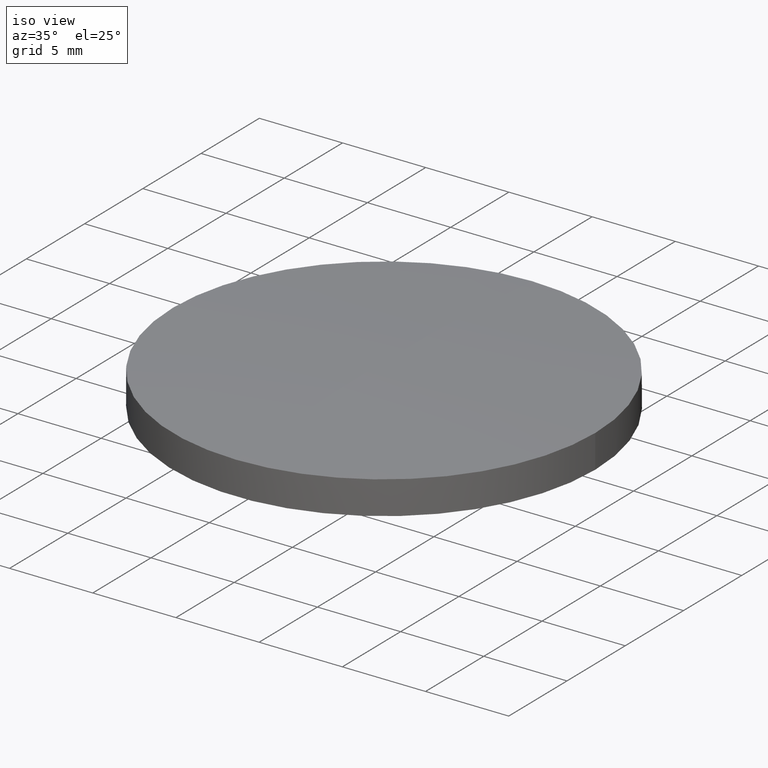
[diagram: clean part render]
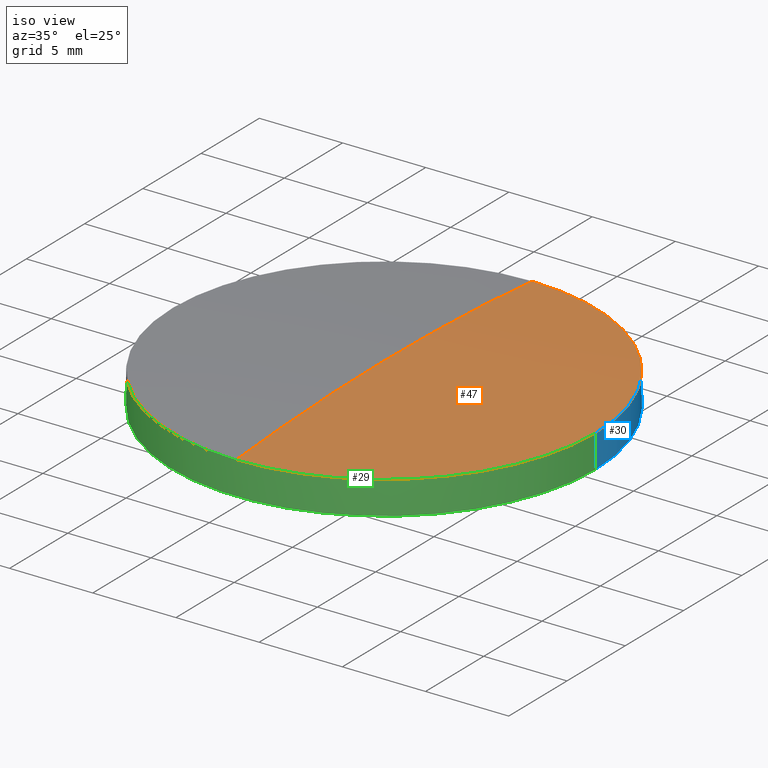
[diagram: same view with three faces highlighted in distinct colors, each labeled with its STEP entity id]
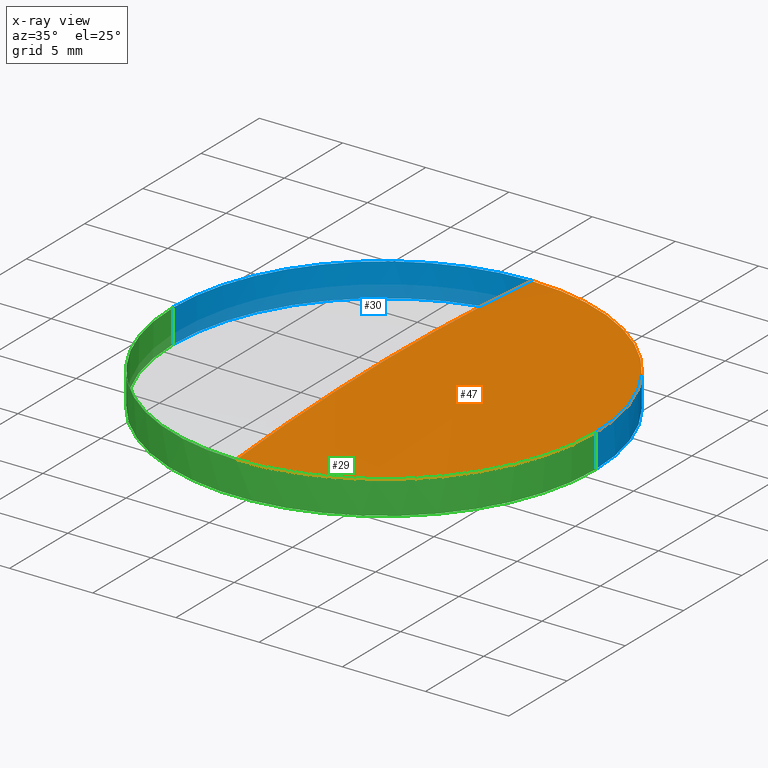
[diagram: x-ray of the same camera — body ghosted, the three highlighted faces saturated]
A machine part, iso view with three faces highlighted in distinct colors.
The next image is the same camera in x-ray (body ghosted, the three faces saturated) — at least one of them is partly hidden behind the body in this view.
Their STEP definitions:

[orange] entity #47 — the highlighted spherical surface has radius 154.52 mm.
#1 = CARTESIAN_POINT ( 'NONE',  ( 0.0000000000000000000, 0.0000000000000000000, 0.7372090656191160300 ) ) ;
#2 = AXIS2_PLACEMENT_3D ( 'NONE', #1, #3, #5 ) ;
#3 = DIRECTION ( 'NONE',  ( -0.0000000000000000000, -0.0000000000000000000, 1.000000000000000000 ) ) ;
#5 = DIRECTION ( 'NONE',  ( 1.000000000000000000, 0.0000000000000000000, 0.0000000000000000000 ) ) ;
#21 = CIRCLE ( 'NONE', #2, 12.69999999999999900 ) ;
#24 = ORIENTED_EDGE ( 'NONE', *, *, #25, .T. ) ;
#25 = EDGE_CURVE ( 'NONE', #73, #77, #21, .T. ) ;
#28 = ORIENTED_EDGE ( 'NONE', *, *, #80, .T. ) ;
#47 = ADVANCED_FACE ( 'NONE', ( #122 ), #153, .T. ) ;
#50 = ORIENTED_EDGE ( 'NONE', *, *, #83, .F. ) ;
#51 = ORIENTED_EDGE ( 'NONE', *, *, #75, .T. ) ;
#62 = EDGE_LOOP ( 'NONE', ( #50, #24, #51, #28 ) ) ;
#70 = VERTEX_POINT ( 'NONE', #202 ) ;
#73 = VERTEX_POINT ( 'NONE', #164 ) ;
#75 = EDGE_CURVE ( 'NONE', #77, #70, #195, .T. ) ;
#77 = VERTEX_POINT ( 'NONE', #171 ) ;
#80 = EDGE_CURVE ( 'NONE', #70, #89, #170, .T. ) ;
#83 = EDGE_CURVE ( 'NONE', #73, #89, #154, .T. ) ;
#89 = VERTEX_POINT ( 'NONE', #253 ) ;
#122 = FACE_OUTER_BOUND ( 'NONE', #62, .T. ) ;
#153 = SPHERICAL_SURFACE ( 'NONE', #186, 154.5200000000000100 ) ;
#154 = CIRCLE ( 'NONE', #210, 154.5200000000000100 ) ;
#163 = DIRECTION ( 'NONE',  ( 1.000000000000000000, 0.0000000000000000000, 0.0000000000000000000 ) ) ;
#164 = CARTESIAN_POINT ( 'NONE',  ( -1.555250069354422800E-015, -12.70000000000002900, 0.7372090656191268000 ) ) ;
#170 = CIRCLE ( 'NONE', #189, 154.5200000000000400 ) ;
#171 = CARTESIAN_POINT ( 'NONE',  ( 12.69999999999999900, 0.0000000000000000000, 0.7372090656191160300 ) ) ;
#178 = DIRECTION ( 'NONE',  ( 0.0000000000000000000, 0.0000000000000000000, -1.000000000000000000 ) ) ;
#184 = DIRECTION ( 'NONE',  ( -1.000000000000000000, 0.0000000000000000000, 0.0000000000000000000 ) ) ;
#185 = CARTESIAN_POINT ( 'NONE',  ( 0.0000000000000000000, 0.0000000000000000000, -153.2600000000000200 ) ) ;
#186 = AXIS2_PLACEMENT_3D ( 'NONE', #185, #184, #203 ) ;
#187 = DIRECTION ( 'NONE',  ( 1.000000000000000000, 0.0000000000000000000, 0.0000000000000000000 ) ) ;
#188 = CARTESIAN_POINT ( 'NONE',  ( 0.0000000000000000000, 0.0000000000000000000, -153.2600000000000200 ) ) ;
#189 = AXIS2_PLACEMENT_3D ( 'NONE', #188, #187, #178 ) ;
#192 = DIRECTION ( 'NONE',  ( -0.0000000000000000000, -0.0000000000000000000, 1.000000000000000000 ) ) ;
#193 = CARTESIAN_POINT ( 'NONE',  ( 0.0000000000000000000, 0.0000000000000000000, 0.7372090656191160300 ) ) ;
#194 = AXIS2_PLACEMENT_3D ( 'NONE', #193, #192, #163 ) ;
#195 = CIRCLE ( 'NONE', #194, 12.69999999999999900 ) ;
#202 = CARTESIAN_POINT ( 'NONE',  ( 0.0000000000000000000, 12.70000000000002900, 0.7372090656191268000 ) ) ;
#203 = DIRECTION ( 'NONE',  ( 0.0000000000000000000, 1.000000000000000000, 0.0000000000000000000 ) ) ;
#210 = AXIS2_PLACEMENT_3D ( 'NONE', #233, #227, #259 ) ;
#227 = DIRECTION ( 'NONE',  ( -1.000000000000000000, 1.224606353822377300E-016, 0.0000000000000000000 ) ) ;
#233 = CARTESIAN_POINT ( 'NONE',  ( 0.0000000000000000000, 0.0000000000000000000, -153.2600000000000200 ) ) ;
#253 = CARTESIAN_POINT ( 'NONE',  ( 0.0000000000000000000, 9.461308689631688100E-015, 1.260000000000011100 ) ) ;
#259 = DIRECTION ( 'NONE',  ( -1.224606353822377300E-016, -1.000000000000000000, 0.0000000000000000000 ) ) ;

[blue] entity #30 — the highlighted cylindrical surface (partial cylindrical patch) has radius 12.7 mm, axis along (-0, -0, 1).
#17 = DIRECTION ( 'NONE',  ( -0.0000000000000000000, -0.0000000000000000000, 1.000000000000000000 ) ) ;
#18 = VECTOR ( 'NONE', #17, 1000.000000000000000 ) ;
#19 = CARTESIAN_POINT ( 'NONE',  ( 12.69999999999999900, 0.0000000000000000000, 4.308132045400366600 ) ) ;
#20 = LINE ( 'NONE', #19, #18 ) ;
#22 = ORIENTED_EDGE ( 'NONE', *, *, #23, .F. ) ;
#23 = EDGE_CURVE ( 'NONE', #49, #77, #20, .T. ) ;
#26 = ORIENTED_EDGE ( 'NONE', *, *, #75, .F. ) ;
#27 = EDGE_CURVE ( 'NONE', #36, #56, #103, .T. ) ;
#30 = ADVANCED_FACE ( 'NONE', ( #118 ), #141, .T. ) ;
#34 = EDGE_CURVE ( 'NONE', #49, #36, #128, .T. ) ;
#36 = VERTEX_POINT ( 'NONE', #123 ) ;
#49 = VERTEX_POINT ( 'NONE', #166 ) ;
#56 = VERTEX_POINT ( 'NONE', #206 ) ;
#70 = VERTEX_POINT ( 'NONE', #202 ) ;
#71 = ORIENTED_EDGE ( 'NONE', *, *, #27, .T. ) ;
#75 = EDGE_CURVE ( 'NONE', #77, #70, #195, .T. ) ;
#77 = VERTEX_POINT ( 'NONE', #171 ) ;
#78 = ORIENTED_EDGE ( 'NONE', *, *, #34, .T. ) ;
#79 = EDGE_LOOP ( 'NONE', ( #78, #71, #84, #26, #22 ) ) ;
#81 = EDGE_CURVE ( 'NONE', #70, #56, #177, .T. ) ;
#84 = ORIENTED_EDGE ( 'NONE', *, *, #81, .F. ) ;
#100 = DIRECTION ( 'NONE',  ( -0.0000000000000000000, -0.0000000000000000000, 1.000000000000000000 ) ) ;
#101 = VECTOR ( 'NONE', #100, 1000.000000000000000 ) ;
#102 = CARTESIAN_POINT ( 'NONE',  ( -12.69999999999999900, 1.555250069354419100E-015, 4.308132045400366600 ) ) ;
#103 = LINE ( 'NONE', #102, #101 ) ;
#118 = FACE_OUTER_BOUND ( 'NONE', #79, .T. ) ;
#123 = CARTESIAN_POINT ( 'NONE',  ( -12.69999999999999900, 1.555250069354419100E-015, -1.259999999999999800 ) ) ;
#124 = DIRECTION ( 'NONE',  ( 1.000000000000000000, 0.0000000000000000000, 0.0000000000000000000 ) ) ;
#125 = DIRECTION ( 'NONE',  ( -0.0000000000000000000, -0.0000000000000000000, 1.000000000000000000 ) ) ;
#126 = CARTESIAN_POINT ( 'NONE',  ( 0.0000000000000000000, 0.0000000000000000000, -1.259999999999999800 ) ) ;
#127 = AXIS2_PLACEMENT_3D ( 'NONE', #126, #125, #124 ) ;
#128 = CIRCLE ( 'NONE', #127, 12.69999999999999900 ) ;
#141 = CYLINDRICAL_SURFACE ( 'NONE', #146, 12.69999999999999900 ) ;
#146 = AXIS2_PLACEMENT_3D ( 'NONE', #147, #151, #150 ) ;
#147 = CARTESIAN_POINT ( 'NONE',  ( 0.0000000000000000000, 0.0000000000000000000, 4.308132045400366600 ) ) ;
#150 = DIRECTION ( 'NONE',  ( 1.000000000000000000, 0.0000000000000000000, 0.0000000000000000000 ) ) ;
#151 = DIRECTION ( 'NONE',  ( -0.0000000000000000000, -0.0000000000000000000, 1.000000000000000000 ) ) ;
#156 = DIRECTION ( 'NONE',  ( 1.000000000000000000, 0.0000000000000000000, 0.0000000000000000000 ) ) ;
#157 = DIRECTION ( 'NONE',  ( -0.0000000000000000000, -0.0000000000000000000, 1.000000000000000000 ) ) ;
#163 = DIRECTION ( 'NONE',  ( 1.000000000000000000, 0.0000000000000000000, 0.0000000000000000000 ) ) ;
#166 = CARTESIAN_POINT ( 'NONE',  ( 12.69999999999999900, 0.0000000000000000000, -1.259999999999999800 ) ) ;
#171 = CARTESIAN_POINT ( 'NONE',  ( 12.69999999999999900, 0.0000000000000000000, 0.7372090656191160300 ) ) ;
#176 = AXIS2_PLACEMENT_3D ( 'NONE', #190, #157, #156 ) ;
#177 = CIRCLE ( 'NONE', #176, 12.69999999999999900 ) ;
#190 = CARTESIAN_POINT ( 'NONE',  ( 0.0000000000000000000, 0.0000000000000000000, 0.7372090656191160300 ) ) ;
#192 = DIRECTION ( 'NONE',  ( -0.0000000000000000000, -0.0000000000000000000, 1.000000000000000000 ) ) ;
#193 = CARTESIAN_POINT ( 'NONE',  ( 0.0000000000000000000, 0.0000000000000000000, 0.7372090656191160300 ) ) ;
#194 = AXIS2_PLACEMENT_3D ( 'NONE', #193, #192, #163 ) ;
#195 = CIRCLE ( 'NONE', #194, 12.69999999999999900 ) ;
#202 = CARTESIAN_POINT ( 'NONE',  ( 0.0000000000000000000, 12.70000000000002900, 0.7372090656191268000 ) ) ;
#206 = CARTESIAN_POINT ( 'NONE',  ( -12.69999999999999900, 1.555250069354419100E-015, 0.7372090656191160300 ) ) ;

[green] entity #29 — the highlighted cylindrical surface (partial cylindrical patch) has radius 12.7 mm, axis along (-0, -0, 1).
#1 = CARTESIAN_POINT ( 'NONE',  ( 0.0000000000000000000, 0.0000000000000000000, 0.7372090656191160300 ) ) ;
#2 = AXIS2_PLACEMENT_3D ( 'NONE', #1, #3, #5 ) ;
#3 = DIRECTION ( 'NONE',  ( -0.0000000000000000000, -0.0000000000000000000, 1.000000000000000000 ) ) ;
#5 = DIRECTION ( 'NONE',  ( 1.000000000000000000, 0.0000000000000000000, 0.0000000000000000000 ) ) ;
#15 = ORIENTED_EDGE ( 'NONE', *, *, #25, .F. ) ;
#17 = DIRECTION ( 'NONE',  ( -0.0000000000000000000, -0.0000000000000000000, 1.000000000000000000 ) ) ;
#18 = VECTOR ( 'NONE', #17, 1000.000000000000000 ) ;
#19 = CARTESIAN_POINT ( 'NONE',  ( 12.69999999999999900, 0.0000000000000000000, 4.308132045400366600 ) ) ;
#20 = LINE ( 'NONE', #19, #18 ) ;
#21 = CIRCLE ( 'NONE', #2, 12.69999999999999900 ) ;
#23 = EDGE_CURVE ( 'NONE', #49, #77, #20, .T. ) ;
#25 = EDGE_CURVE ( 'NONE', #73, #77, #21, .T. ) ;
#27 = EDGE_CURVE ( 'NONE', #36, #56, #103, .T. ) ;
#29 = ADVANCED_FACE ( 'NONE', ( #98 ), #140, .T. ) ;
#36 = VERTEX_POINT ( 'NONE', #123 ) ;
#49 = VERTEX_POINT ( 'NONE', #166 ) ;
#52 = EDGE_CURVE ( 'NONE', #36, #49, #165, .T. ) ;
#53 = ORIENTED_EDGE ( 'NONE', *, *, #27, .F. ) ;
#56 = VERTEX_POINT ( 'NONE', #206 ) ;
#66 = EDGE_LOOP ( 'NONE', ( #53, #68, #69, #15, #67 ) ) ;
#67 = ORIENTED_EDGE ( 'NONE', *, *, #88, .F. ) ;
#68 = ORIENTED_EDGE ( 'NONE', *, *, #52, .T. ) ;
#69 = ORIENTED_EDGE ( 'NONE', *, *, #23, .T. ) ;
#73 = VERTEX_POINT ( 'NONE', #164 ) ;
#77 = VERTEX_POINT ( 'NONE', #171 ) ;
#88 = EDGE_CURVE ( 'NONE', #56, #73, #235, .T. ) ;
#98 = FACE_OUTER_BOUND ( 'NONE', #66, .T. ) ;
#100 = DIRECTION ( 'NONE',  ( -0.0000000000000000000, -0.0000000000000000000, 1.000000000000000000 ) ) ;
#101 = VECTOR ( 'NONE', #100, 1000.000000000000000 ) ;
#102 = CARTESIAN_POINT ( 'NONE',  ( -12.69999999999999900, 1.555250069354419100E-015, 4.308132045400366600 ) ) ;
#103 = LINE ( 'NONE', #102, #101 ) ;
#108 = CARTESIAN_POINT ( 'NONE',  ( 0.0000000000000000000, 0.0000000000000000000, 4.308132045400366600 ) ) ;
#109 = DIRECTION ( 'NONE',  ( 1.000000000000000000, 0.0000000000000000000, 0.0000000000000000000 ) ) ;
#116 = AXIS2_PLACEMENT_3D ( 'NONE', #108, #145, #109 ) ;
#123 = CARTESIAN_POINT ( 'NONE',  ( -12.69999999999999900, 1.555250069354419100E-015, -1.259999999999999800 ) ) ;
#140 = CYLINDRICAL_SURFACE ( 'NONE', #116, 12.69999999999999900 ) ;
#145 = DIRECTION ( 'NONE',  ( -0.0000000000000000000, -0.0000000000000000000, 1.000000000000000000 ) ) ;
#158 = DIRECTION ( 'NONE',  ( 1.000000000000000000, 0.0000000000000000000, 0.0000000000000000000 ) ) ;
#159 = DIRECTION ( 'NONE',  ( -0.0000000000000000000, -0.0000000000000000000, 1.000000000000000000 ) ) ;
#160 = CARTESIAN_POINT ( 'NONE',  ( 0.0000000000000000000, 0.0000000000000000000, -1.259999999999999800 ) ) ;
#164 = CARTESIAN_POINT ( 'NONE',  ( -1.555250069354422800E-015, -12.70000000000002900, 0.7372090656191268000 ) ) ;
#165 = CIRCLE ( 'NONE', #205, 12.69999999999999900 ) ;
#166 = CARTESIAN_POINT ( 'NONE',  ( 12.69999999999999900, 0.0000000000000000000, -1.259999999999999800 ) ) ;
#171 = CARTESIAN_POINT ( 'NONE',  ( 12.69999999999999900, 0.0000000000000000000, 0.7372090656191160300 ) ) ;
#205 = AXIS2_PLACEMENT_3D ( 'NONE', #160, #159, #158 ) ;
#206 = CARTESIAN_POINT ( 'NONE',  ( -12.69999999999999900, 1.555250069354419100E-015, 0.7372090656191160300 ) ) ;
#221 = DIRECTION ( 'NONE',  ( 1.000000000000000000, 0.0000000000000000000, 0.0000000000000000000 ) ) ;
#231 = CARTESIAN_POINT ( 'NONE',  ( 0.0000000000000000000, 0.0000000000000000000, 0.7372090656191160300 ) ) ;
#235 = CIRCLE ( 'NONE', #252, 12.69999999999999900 ) ;
#242 = DIRECTION ( 'NONE',  ( -0.0000000000000000000, -0.0000000000000000000, 1.000000000000000000 ) ) ;
#252 = AXIS2_PLACEMENT_3D ( 'NONE', #231, #242, #221 ) ;